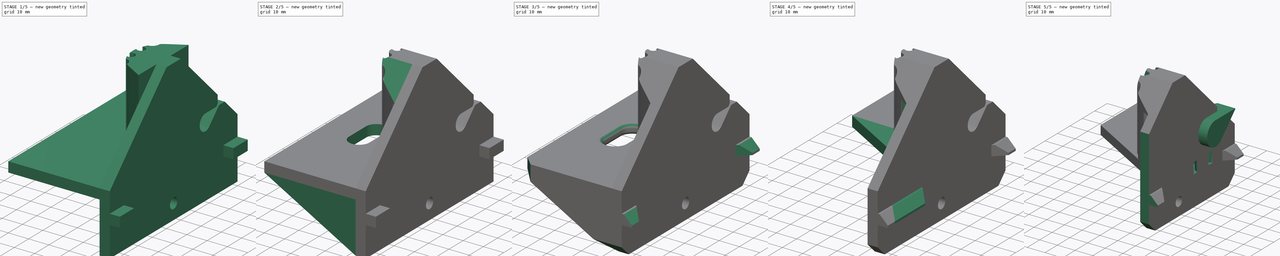
[diagram: build sequence overview — one tinted view per stage of 5, left to right]
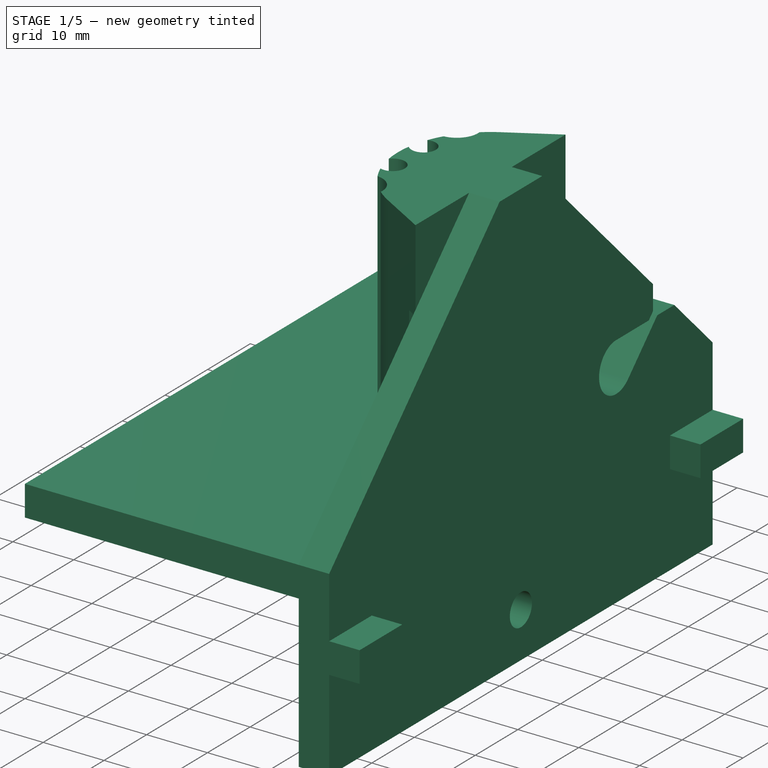
[diagram: stage 1 of 5 — iso view after this stage's code; geometry added in this stage tinted green]
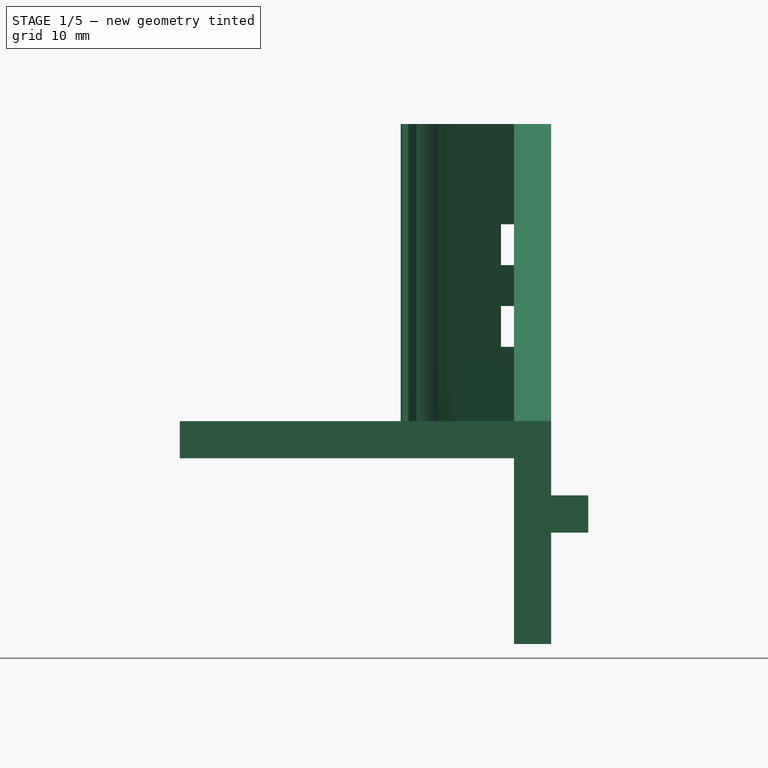
[diagram: stage 1 of 5 — front view after this stage's code; geometry added in this stage tinted green]
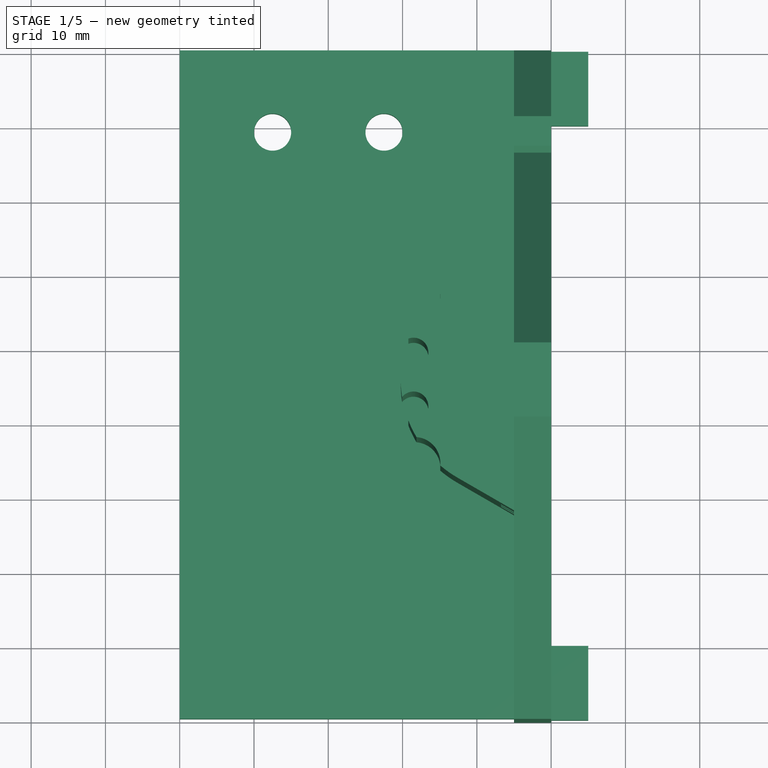
[diagram: stage 1 of 5 — top view after this stage's code; geometry added in this stage tinted green]
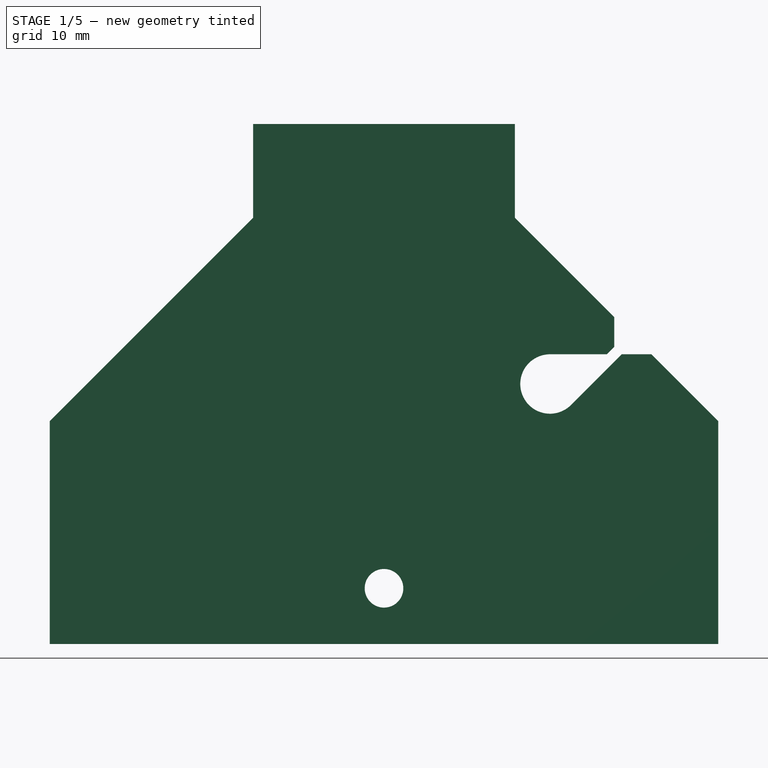
[diagram: stage 1 of 5 — right view after this stage's code; geometry added in this stage tinted green]
FCSTD DOCUMENT  (FreeCAD 0.20R29603 (Git))
Label: cable-splay
License: CERN Open Hardware Licence strongly-reciprocal
LicenseURL: https://cern-ohl.web.cern.ch/
objects: Sketcher::SketchObject×18, PartDesign::Pocket×14, PartDesign::Pad×8, PartDesign::Fillet×5, PartDesign::Chamfer×5, PartDesign::Plane×4, PartDesign::Body×2, PartDesign::Line×1, PartDesign::Groove×1, PartDesign::SubShapeBinder×1, PartDesign::SubtractivePipe×1, Part::Compound×1
note: 95 computed .brp shape members not serialized (recipe doc carries the construction recipe); baked Part::Feature solids carry a one-line shape summary decoded from their .brp

FEATURE [Sketcher::SketchObject] Sketch
  FullyConstrained = true
  MapMode = 5
  Placement = pos=(0,0,0) rot=(1,0,0;1.5708rad)
  Support = -> [XZ_Plane]
  sketch-geometry (12):
    g0: LineSegment StartX=0 StartY=0 StartZ=0 EndX=0 EndY=-15 EndZ=0
    g1: LineSegment StartX=0 StartY=-15 StartZ=0 EndX=-5 EndY=-15 EndZ=0
    g2: LineSegment StartX=-50 StartY=10 StartZ=0 EndX=-50 EndY=15 EndZ=0
    g3: LineSegment StartX=-50 StartY=15 StartZ=0 EndX=-5 EndY=15 EndZ=0
    g4: LineSegment StartX=-5 StartY=15 StartZ=0 EndX=-5 EndY=55 EndZ=0
    g5: LineSegment StartX=-5 StartY=55 StartZ=0 EndX=0 EndY=55 EndZ=0
    g6: LineSegment StartX=0 StartY=55 StartZ=0 EndX=0 EndY=5 EndZ=0
    g7: LineSegment StartX=0 StartY=5 StartZ=0 EndX=5 EndY=5 EndZ=0
    g8: LineSegment StartX=5 StartY=5 StartZ=0 EndX=5 EndY=0 EndZ=0
    g9: LineSegment StartX=5 StartY=0 StartZ=0 EndX=0 EndY=0 EndZ=0
    g10: LineSegment StartX=-50 StartY=10 StartZ=0 EndX=-5 EndY=10 EndZ=0
    g11: LineSegment StartX=-5 StartY=10 StartZ=0 EndX=-5 EndY=-15 EndZ=0
  constraints (35):
    c: Coincident(g-1,g0)
    c: PointOnObject(g0,g-2)
    c: Coincident(g0,g1)
    c: Horizontal(g1)
    c: Vertical(g2)
    c: Coincident(g2,g3)
    c: Horizontal(g3)
    c: Coincident(g3,g4)
    c: Vertical(g4)
    c: Coincident(g4,g5)
    c: Horizontal(g5)
    c: Coincident(g5,g6)
    c: Vertical(g6)
    c: Coincident(g6,g7)
    c: Horizontal(g7)
    c: Coincident(g7,g8)
    c: PointOnObject(g8,g-1)
    c: Vertical(g8)
    c: Coincident(g8,g9)
    c: Coincident(g9,g0)
    c: DistanceY(g0,g0) = 15
    c: DistanceY(g2,g2) = 5
    c: DistanceX(g9,g9) = 5
    c: DistanceX(g3,g3) = 45
    c: DistanceX(g5,g5) = 5
    c: DistanceY(g6,g6) = 50
    c: DistanceX(g1,g1) = 5
    c: Coincident(g10,g11)
    c: Coincident(g11,g1)
    c: Vertical(g11)
    c: Coincident(g10,g2)
    c: Horizontal(g10)
    c: DistanceY(g0,g10) = 10
    c: PointOnObject(g6,g-2)
    c: DistanceY(g8,g8) = 5
FEATURE [PartDesign::Pad] Pad
  Direction = (0,-1,-2e-16)
  Length = 90
  Length2 = 10
  Placement = pos=(0,0,0) rot=(1,0,0;1.5708rad)
  Profile = -> Sketch
  ReferenceAxis = -> Sketch [N_Axis]
  Type = 0
FEATURE [Sketcher::SketchObject] Sketch001
  FullyConstrained = true
  MapMode = 5
  Placement = pos=(0,0,0) rot=(0.57735,0.57735,0.57735;2.0944rad)
  Support = -> [YZ_Plane]
  sketch-geometry (7):
    g0: Circle CenterX=-45 CenterY=-7.5 CenterZ=0 NormalX=0 NormalY=0 NormalZ=1 AngleXU=0 Radius=2.6
    g1: LineSegment StartX=-90 StartY=15 StartZ=0 EndX=-50 EndY=55 EndZ=0
    g2: LineSegment StartX=-50 StartY=55 StartZ=0 EndX=-90 EndY=55 EndZ=0
    g3: LineSegment StartX=-90 StartY=55 StartZ=0 EndX=-90 EndY=15 EndZ=0
    g4: LineSegment StartX=0 StartY=15 StartZ=0 EndX=-40 EndY=55 EndZ=0
    g5: LineSegment StartX=-40 StartY=55 StartZ=0 EndX=0 EndY=55 EndZ=0
    g6: LineSegment StartX=0 StartY=55 StartZ=0 EndX=0 EndY=15 EndZ=0
  constraints (21):
    c: Diameter(g0) = 5.2
    c: DistanceX(g0,g-1) = 45
    c: DistanceY(g0,g-1) = 7.5
    c: Coincident(g1,g2)
    c: Horizontal(g2)
    c: Coincident(g2,g3)
    c: Coincident(g3,g1)
    c: Vertical(g3)
    c: PointOnObject(g4,g-2)
    c: Coincident(g4,g5)
    c: PointOnObject(g5,g-2)
    c: Horizontal(g5)
    c: Coincident(g5,g6)
    c: Coincident(g6,g4)
    c: DistanceY(g6,g6) = 40
    c: DistanceY(g3,g3) = 40
    c: PointOnObject(g1,g5)
    c: DistanceX(g2,g2) = 40
    c: DistanceX(g5,g5) = 40
    c: DistanceY(g-1,g5) = 55
    c: DistanceX(g2,g-1) = 90
FEATURE [PartDesign::Pocket] Pocket
  BaseFeature = -> Pad
  Direction = (-1,2e-16,-3e-16)
  Length = 5
  Length2 = 5
  Placement = pos=(0,0,0) rot=(1,0,0;1.5708rad)
  Profile = -> Sketch001
  ReferenceAxis = -> Sketch001 [N_Axis]
  Type = 0
FEATURE [Sketcher::SketchObject] Sketch002
  FullyConstrained = true
  MapMode = 5
  Support = -> [XY_Plane]
  sketch-geometry (4):
    g0: LineSegment StartX=0 StartY=-10 StartZ=0 EndX=5 EndY=-10 EndZ=0
    g1: LineSegment StartX=5 StartY=-10 StartZ=0 EndX=5 EndY=-80 EndZ=0
    g2: LineSegment StartX=5 StartY=-80 StartZ=0 EndX=0 EndY=-80 EndZ=0
    g3: LineSegment StartX=0 StartY=-80 StartZ=0 EndX=0 EndY=-10 EndZ=0
  constraints (12):
    c: Coincident(g0,g1)
    c: Coincident(g1,g2)
    c: Coincident(g2,g3)
    c: Coincident(g3,g0)
    c: Horizontal(g0)
    c: Horizontal(g2)
    c: Vertical(g1)
    c: Vertical(g3)
    c: PointOnObject(g0,g-2)
    c: DistanceY(g0,g-1) = 10
    c: DistanceY(g3,g3) = 70
    c: DistanceX(g0,g0) = 5
FEATURE [PartDesign::Pocket] Pocket001
  BaseFeature = -> Pocket
  Direction = (0,0,-1)
  Length = 5
  Length2 = 5
  Placement = pos=(0,0,0) rot=(1,0,0;1.5708rad)
  Profile = -> Sketch002
  ReferenceAxis = -> Sketch002 [N_Axis]
  Reversed = true
  Type = 0
FEATURE [Sketcher::SketchObject] Sketch004
  FullyConstrained = false
  MapMode = 5
  Placement = pos=(0,0,0) rot=(0.57735,0.57735,0.57735;2.0944rad)
  Support = -> [YZ_Plane]
  sketch-geometry (9):
    g0: ArcOfCircle CenterX=-22.6569 CenterY=20 CenterZ=0 NormalX=0 NormalY=0 NormalZ=1 AngleXU=0 Radius=4 StartAngle=1.5708 EndAngle=5.49779
    g1: LineSegment StartX=-14 StartY=29 StartZ=0 EndX=-9 EndY=24 EndZ=0
    g2: LineSegment StartX=-4.65521 StartY=19.6552 StartZ=0 EndX=0 EndY=15 EndZ=0
    g3: LineSegment StartX=-14 StartY=25 StartZ=0 EndX=-14 EndY=29 EndZ=0
    g4: LineSegment StartX=-14 StartY=25 StartZ=0 EndX=-15 EndY=24 EndZ=0
    g5: LineSegment StartX=-15 StartY=24 StartZ=0 EndX=-22.6569 EndY=24 EndZ=0
    g6: LineSegment StartX=-13 StartY=24 StartZ=0 EndX=-9 EndY=24 EndZ=0
    g7: LineSegment StartX=-13 StartY=24 StartZ=0 EndX=-14 EndY=23 EndZ=0
    g8: LineSegment StartX=-19.8284 StartY=17.1716 StartZ=0 EndX=-14 EndY=23 EndZ=0
  constraints (26):
    c: Angle(g1,g-1) = 0.785398
    c: PointOnObject(g2,g-2)
    c: Parallel(g1,g2)
    c: DistanceY(g-1,g2) = 15
    c: PointOnObject(g1,g2)
    c: Coincident(g3,g1)
    c: Vertical(g3)
    c: Coincident(g3,g4)
    c: Tangent(g5,g0) = -1.5708
    c: Angle(g3,g4) = 2.35619
    c: DistanceY(g3,g3) = 4
    c: DistanceX(g4,g3) = 1
    c: Coincident(g6,g1)
    c: Horizontal(g6)
    c: DistanceX(g6,g6) = 4
    c: DistanceX(g1,g-1) = 14
    c: Coincident(g5,g4)
    c: Horizontal(g5)
    c: Coincident(g7,g6)
    c: DistanceX(g7,g6) = 1
    c: Angle(g7,g6) = 2.35619
    c: Coincident(g8,g7)
    c: Tangent(g8,g0) = -1.5708
    c: Parallel(g8,g7)
    c: Diameter(g0) = 8
    c: DistanceX(g3,g1) = 5
FEATURE [PartDesign::Pocket] Pocket002
  BaseFeature = -> Pocket001
  Direction = (-1,2e-16,-3e-16)
  Length = 5
  Length2 = 5
  Placement = pos=(0,0,0) rot=(1,0,0;1.5708rad)
  Profile = -> Sketch004
  ReferenceAxis = -> Sketch004 [N_Axis]
  Type = 0
FEATURE [PartDesign::Plane] DatumPlane
  Length = 91.7929
  MapMode = 5
  Placement = pos=(0,0,15) rot=(0,0,1;3.14159rad)
  ResizeMode = 0
  Support = -> [Pocket002]
  Width = 110.793
FEATURE [Sketcher::SketchObject] Sketch005  label="splay-column"
  FullyConstrained = true
  MapMode = 5
  Placement = pos=(0,0,15) rot=(0,0,1;3.14159rad)
  Support = -> [DatumPlane]
  sketch-geometry (18):
    g0: LineSegment StartX=5 StartY=62.6092 StartZ=0 EndX=5 EndY=27.3908 EndZ=0
    g1: GeomPoint X=5 Y=45 Z=0
    g2: ArcOfCircle CenterX=5 CenterY=45 CenterZ=0 NormalX=0 NormalY=0 NormalZ=1 AngleXU=0 Radius=15.25 StartAngle=5.23599 EndAngle=5.42076
    g3: ArcOfCircle CenterX=5 CenterY=45 CenterZ=0 NormalX=0 NormalY=0 NormalZ=1 AngleXU=0 Radius=15.25 StartAngle=0.862426 EndAngle=1.0472
    g4: ArcOfCircle CenterX=5 CenterY=45 CenterZ=0 NormalX=0 NormalY=0 NormalZ=1 AngleXU=0 Radius=15.25 StartAngle=0.3687 EndAngle=0.533837
    g5: ArcOfCircle CenterX=5 CenterY=45 CenterZ=0 NormalX=0 NormalY=0 NormalZ=1 AngleXU=0 Radius=15.25 StartAngle=6.12829 EndAngle=6.43808
    g6: ArcOfCircle CenterX=5 CenterY=45 CenterZ=0 NormalX=0 NormalY=0 NormalZ=1 AngleXU=0 Radius=15.25 StartAngle=5.74935 EndAngle=5.91449
    g7: ArcOfCircle CenterX=18.523 CenterY=48.6235 CenterZ=0 NormalX=0 NormalY=0 NormalZ=1 AngleXU=0 Radius=2 StartAngle=1.21206 EndAngle=5.59473
    g8: ArcOfCircle CenterX=18.523 CenterY=41.3765 CenterZ=0 NormalX=0 NormalY=0 NormalZ=1 AngleXU=0 Radius=2 StartAngle=0.688459 EndAngle=5.07113
    g9: ArcOfCircle CenterX=18.4058 CenterY=33.7512 CenterZ=0 NormalX=0 NormalY=0 NormalZ=1 AngleXU=0 Radius=3.5 StartAngle=1.65021 EndAngle=3.23671
    g10: ArcOfCircle CenterX=18.4058 CenterY=56.2488 CenterZ=0 NormalX=0 NormalY=0 NormalZ=1 AngleXU=0 Radius=3.5 StartAngle=3.04647 EndAngle=4.63298
    g11: LineSegment StartX=5 StartY=45 StartZ=0 EndX=18.523 EndY=48.6235 EndZ=0
    g12: LineSegment StartX=5 StartY=45 StartZ=0 EndX=18.523 EndY=41.3765 EndZ=0
    g13: LineSegment StartX=5 StartY=45 StartZ=0 EndX=20.25 EndY=45 EndZ=0
    g14: LineSegment StartX=5 StartY=45 StartZ=0 EndX=18.4058 EndY=56.2488 EndZ=0
    g15: LineSegment StartX=5 StartY=45 StartZ=0 EndX=18.4058 EndY=33.7512 EndZ=0
    g16: LineSegment StartX=12.625 StartY=58.2069 StartZ=0 EndX=5 EndY=62.6092 EndZ=0
    g17: LineSegment StartX=5 StartY=27.3908 StartZ=0 EndX=12.625 EndY=31.7931 EndZ=0
  constraints (50):
    c: Vertical(g0)
    c: Symmetric(g0,g0,g1)
    c: DistanceY(g-1,g1) = 45
    c: DistanceX(g-1,g1) = 5
    c: Coincident(g2,g1)
    c: Coincident(g3,g2)
    c: Coincident(g4,g2)
    c: Coincident(g5,g2)
    c: Coincident(g6,g2)
    c: Diameter(g3) = 30.5
    c: Diameter(g4) = 30.5
    c: Diameter(g5) = 30.5
    c: Diameter(g6) = 30.5
    c: Coincident(g7,g4)
    c: Coincident(g7,g5)
    c: Coincident(g8,g5)
    c: Coincident(g8,g6)
    c: Coincident(g9,g2)
    c: Coincident(g9,g6)
    c: Coincident(g10,g3)
    c: Coincident(g10,g4)
    c: Diameter(g8) = 4
    c: Diameter(g7) = 4
    c: Coincident(g11,g2)
    c: Coincident(g11,g7)
    c: Coincident(g12,g2)
    c: Coincident(g12,g8)
    c: Coincident(g13,g2)
    c: PointOnObject(g13,g5)
    c: Horizontal(g13)
    c: Angle(g13,g11) = 0.261799
    c: Angle(g12,g13) = 0.261799
    c: Distance(g11) = 14
    c: Distance(g12) = 14
    c: Coincident(g14,g2)
    c: Coincident(g14,g10)
    c: Coincident(g15,g2)
    c: Coincident(g15,g9)
    c: Angle(g13,g14) = 0.698132
    c: Angle(g15,g13) = 0.698132
    c: Diameter(g9) = 7
    c: Diameter(g10) = 7
    c: Distance(g15) = 17.5
    c: Distance(g14) = 17.5
    c: Tangent(g16,g3) = -1.5708
    c: Coincident(g16,g0)
    c: Coincident(g17,g0)
    c: Tangent(g17,g2) = -1.5708
    c: Diameter(g2) = 30.5
    c: Angle(g0,g16) = 1.0472
FEATURE [PartDesign::Pad] Pad001
  BaseFeature = -> Pocket002
  Direction = (0,0,1)
  Length = 40
  Length2 = 10
  Placement = pos=(0,0,0) rot=(1,0,0;1.5708rad)
  Profile = -> Sketch005
  ReferenceAxis = -> Sketch005 [N_Axis]
  Type = 0
FEATURE [PartDesign::Plane] DatumPlane001
  AttachmentOffset = pos=(0,0,10) rot=(0,0,1;0rad)
  Length = 91.7929
  MapMode = 5
  Placement = pos=(0,0,25) rot=(0,0,1;3.14159rad)
  ResizeMode = 0
  Support = -> [DatumPlane]
  Width = 110.793
FEATURE [Sketcher::SketchObject] Sketch007  label="zip-tiue-holes"
  FullyConstrained = true
  MapMode = 5
  Placement = pos=(0,0,0) rot=(1,0,0;1.5708rad)
  Support = -> [XZ_Plane]
  sketch-geometry (8):
    g0: LineSegment StartX=-5 StartY=41.5 StartZ=0 EndX=-6.75 EndY=41.5 EndZ=0
    g1: LineSegment StartX=-6.75 StartY=41.5 StartZ=0 EndX=-6.75 EndY=36 EndZ=0
    g2: LineSegment StartX=-6.75 StartY=36 StartZ=0 EndX=-5 EndY=36 EndZ=0
    g3: LineSegment StartX=-5 StartY=36 StartZ=0 EndX=-5 EndY=41.5 EndZ=0
    g4: LineSegment StartX=-5 StartY=30.5 StartZ=0 EndX=-6.75 EndY=30.5 EndZ=0
    g5: LineSegment StartX=-6.75 StartY=30.5 StartZ=0 EndX=-6.75 EndY=25 EndZ=0
    g6: LineSegment StartX=-6.75 StartY=25 StartZ=0 EndX=-5 EndY=25 EndZ=0
    g7: LineSegment StartX=-5 StartY=25 StartZ=0 EndX=-5 EndY=30.5 EndZ=0
  constraints (24):
    c: Coincident(g0,g1)
    c: Coincident(g1,g2)
    c: Coincident(g2,g3)
    c: Coincident(g3,g0)
    c: Horizontal(g0)
    c: Horizontal(g2)
    c: Vertical(g1)
    c: Vertical(g3)
    c: Coincident(g4,g5)
    c: Coincident(g5,g6)
    c: Coincident(g6,g7)
    c: Coincident(g7,g4)
    c: Horizontal(g4)
    c: Horizontal(g6)
    c: Vertical(g5)
    c: Vertical(g7)
    c: DistanceY(g7,g7) = 5.5
    c: DistanceX(g4,g4) = 1.75
    c: DistanceY(g3,g3) = 5.5
    c: DistanceX(g0,g0) = 1.75
    c: DistanceX(g6,g-1) = 5
    c: DistanceX(g2,g-1) = 5
    c: DistanceY(g-1,g6) = 25
    c: DistanceY(g-1,g2) = 36
FEATURE [PartDesign::Pocket] Pocket004
  BaseFeature = -> Pad001
  Direction = (0,1,2e-16)
  Length = 5
  Length2 = 5
  Placement = pos=(0,0,0) rot=(1,0,0;1.5708rad)
  Profile = -> Sketch007
  ReferenceAxis = -> Sketch007 [N_Axis]
  Reversed = true
  Type = 1
FEATURE [Sketcher::SketchObject] Sketch008
  FullyConstrained = true
  MapMode = 5
  Placement = pos=(0,0,15) rot=(0,0,1;3.14159rad)
  Support = -> [DatumPlane]
  sketch-geometry (4):
    g0: Circle CenterX=37.5 CenterY=11 CenterZ=0 NormalX=0 NormalY=0 NormalZ=1 AngleXU=0 Radius=2.5
    g1: Circle CenterX=22.5 CenterY=11 CenterZ=0 NormalX=0 NormalY=0 NormalZ=1 AngleXU=0 Radius=2.5
    g2: LineSegment StartX=22.5 StartY=11 StartZ=0 EndX=37.5 EndY=11 EndZ=0
    g3: GeomPoint X=30 Y=11 Z=0
  constraints (9):
    c: Coincident(g2,g1)
    c: Coincident(g2,g0)
    c: Horizontal(g2)
    c: DistanceX(g2,g2) = 15
    c: Diameter(g0) = 5
    c: Diameter(g1) = 5
    c: DistanceY(g-1,g1) = 11
    c: Symmetric(g2,g2,g3)
    c: DistanceX(g-1,g3) = 30
FEATURE [PartDesign::Pocket] Pocket005
  BaseFeature = -> Pocket004
  Direction = (0,0,-1)
  Length = 5
  Length2 = 5
  Placement = pos=(0,0,0) rot=(1,0,0;1.5708rad)
  Profile = -> Sketch008
  ReferenceAxis = -> Sketch008 [N_Axis]
  Type = 0
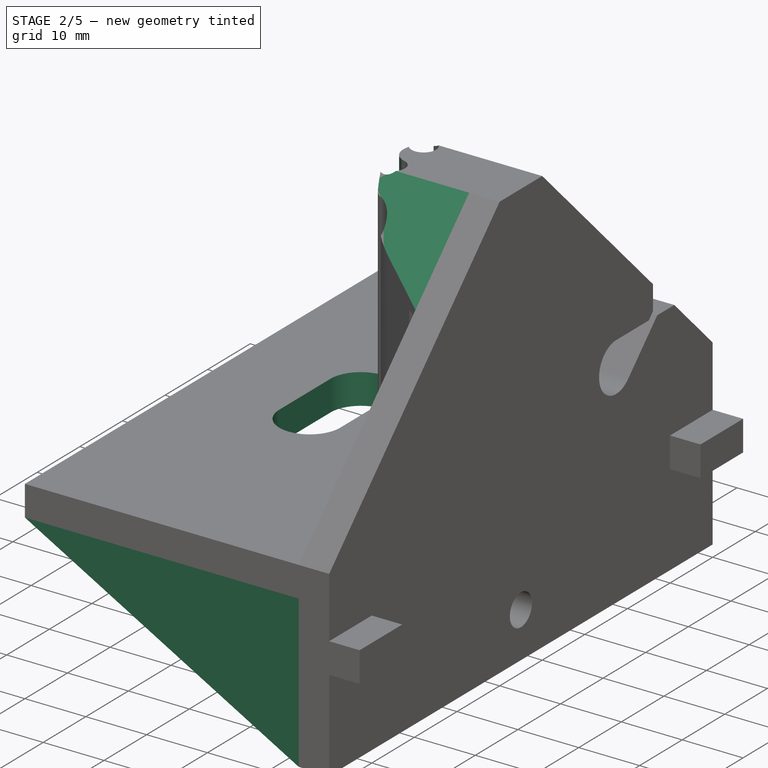
[diagram: stage 2 of 5 — iso view after this stage's code; geometry added in this stage tinted green]
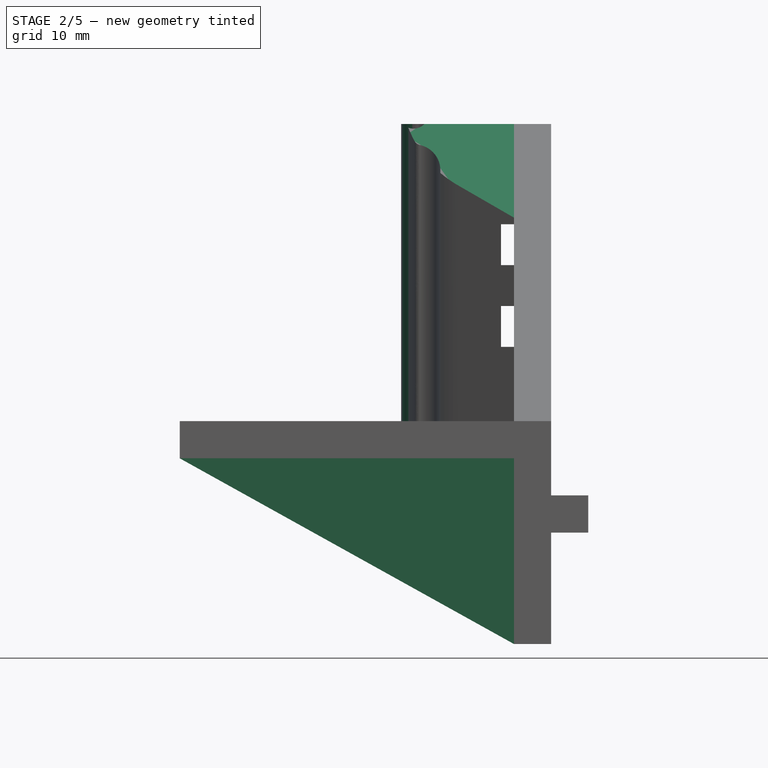
[diagram: stage 2 of 5 — front view after this stage's code; geometry added in this stage tinted green]
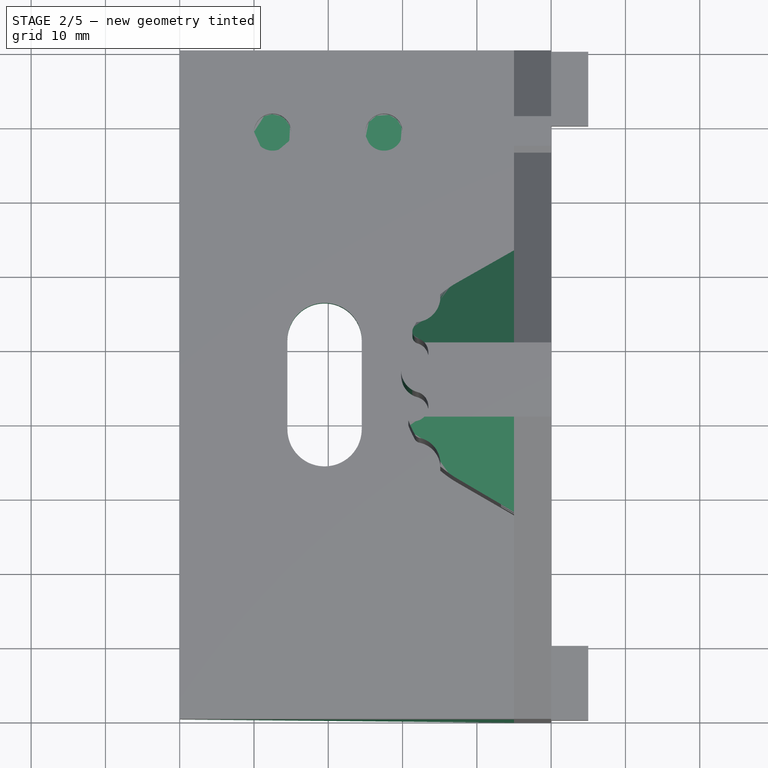
[diagram: stage 2 of 5 — top view after this stage's code; geometry added in this stage tinted green]
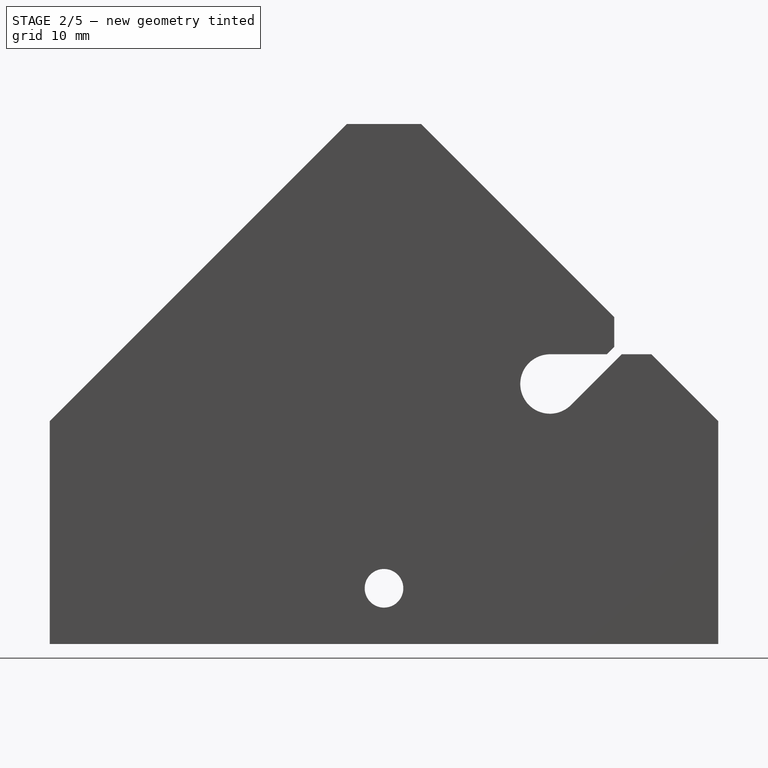
[diagram: stage 2 of 5 — right view after this stage's code; geometry added in this stage tinted green]
FEATURE [Sketcher::SketchObject] Sketch009
  FullyConstrained = true
  MapMode = 5
  Placement = pos=(0,0,0) rot=(0.57735,0.57735,0.57735;2.0944rad)
  Support = -> [YZ_Plane]
  sketch-geometry (5):
    g0: LineSegment StartX=0 StartY=15 StartZ=0 EndX=-45 EndY=60 EndZ=0
    g1: LineSegment StartX=-45 StartY=60 StartZ=0 EndX=-105 EndY=-7.1e-15 EndZ=0
    g2: LineSegment StartX=-105 StartY=-4.1e-15 StartZ=0 EndX=-105 EndY=80 EndZ=0
    g3: LineSegment StartX=-105 StartY=80 StartZ=0 EndX=0 EndY=80 EndZ=0
    g4: LineSegment StartX=0 StartY=80 StartZ=0 EndX=0 EndY=15 EndZ=0
  constraints (15):
    c: PointOnObject(g0,g-2)
    c: Coincident(g0,g1)
    c: PointOnObject(g1,g-1)
    c: Coincident(g1,g2)
    c: Vertical(g2)
    c: Coincident(g2,g3)
    c: PointOnObject(g3,g-2)
    c: Horizontal(g3)
    c: Coincident(g3,g4)
    c: Coincident(g4,g0)
    c: DistanceY(g-1,g0) = 15
    c: Angle(g0,g-2) = 2.35619
    c: Angle(g-1,g1) = 0.785398
    c: DistanceX(g0,g-1) = 45
    c: DistanceY(g2,g2) = 80
FEATURE [PartDesign::Pocket] Pocket006
  BaseFeature = -> Pocket005
  Direction = (-1,2e-16,-3e-16)
  Length = 20
  Length2 = 5
  Placement = pos=(0,0,0) rot=(1,0,0;1.5708rad)
  Profile = -> Sketch009
  ReferenceAxis = -> Sketch009 [N_Axis]
  Type = 0
FEATURE [PartDesign::Fillet] Fillet
  Base = -> Pocket006 [Edge89,Edge87]
  BaseFeature = -> Pocket006
  Placement = pos=(0,0,0) rot=(1,0,0;1.5708rad)
  Radius = 1
  SupportTransform = false
  UseAllEdges = false
FEATURE [PartDesign::Fillet] Fillet001
  Base = -> Fillet [Edge34]
  BaseFeature = -> Fillet
  Placement = pos=(0,0,0) rot=(1,0,0;1.5708rad)
  Radius = 3
  SupportTransform = false
  UseAllEdges = false
FEATURE [PartDesign::Fillet] Fillet002
  Base = -> Fillet001 [Edge35]
  BaseFeature = -> Fillet001
  Placement = pos=(0,0,0) rot=(1,0,0;1.5708rad)
  Radius = 3
  SupportTransform = false
  UseAllEdges = false
FEATURE [PartDesign::Plane] DatumPlane002
  Length = 91.7929
  MapMode = 5
  Placement = pos=(0,0,15) rot=(0,0,1;3.14159rad)
  ResizeMode = 0
  Support = -> [Fillet002]
  Width = 110.793
FEATURE [Sketcher::SketchObject] Sketch010
  FullyConstrained = true
  MapMode = 5
  Placement = pos=(0,0,15) rot=(0,0,1;3.14159rad)
  Support = -> [DatumPlane002]
  sketch-geometry (4):
    g0: ArcOfCircle CenterX=30.5 CenterY=39 CenterZ=0 NormalX=0 NormalY=0 NormalZ=1 AngleXU=0 Radius=5 StartAngle=3.14159 EndAngle=6.28319
    g1: ArcOfCircle CenterX=30.5 CenterY=51 CenterZ=0 NormalX=0 NormalY=0 NormalZ=1 AngleXU=0 Radius=5 StartAngle=-9e-16 EndAngle=3.14159
    g2: LineSegment StartX=35.5 StartY=39 StartZ=0 EndX=35.5 EndY=51 EndZ=0
    g3: LineSegment StartX=25.5 StartY=51 StartZ=0 EndX=25.5 EndY=39 EndZ=0
  constraints (10):
    c: Tangent(g0,g2) = -1.5708
    c: Tangent(g2,g1) = -1.5708
    c: Tangent(g1,g3) = -1.5708
    c: Tangent(g3,g0) = -1.5708
    c: Equal(g0,g1)
    c: Diameter(g1) = 10
    c: DistanceX(g-1,g0) = 30.5
    c: DistanceY(g-1,g0) = 39
    c: DistanceY(g0,g1) = 12
    c: Vertical(g3)
FEATURE [PartDesign::Pocket] Pocket007
  BaseFeature = -> Fillet002
  Direction = (0,-4e-16,-1)
  Length = 5
  Length2 = 5
  Placement = pos=(0,0,0) rot=(1,0,0;1.5708rad)
  Profile = -> Sketch010
  ReferenceAxis = -> Sketch010 [N_Axis]
  Type = 0
FEATURE [Sketcher::SketchObject] Sketch011
  FullyConstrained = true
  MapMode = 5
  Placement = pos=(0,0,0) rot=(1,0,0;1.5708rad)
  Support = -> [XZ_Plane]
  sketch-geometry (3):
    g0: LineSegment StartX=-5 StartY=-15 StartZ=0 EndX=-50 EndY=10 EndZ=0
    g1: LineSegment StartX=-50 StartY=10 StartZ=0 EndX=-5 EndY=10 EndZ=0
    g2: LineSegment StartX=-5 StartY=10 StartZ=0 EndX=-5 EndY=-15 EndZ=0
  constraints (9):
    c: Coincident(g0,g1)
    c: Horizontal(g1)
    c: Coincident(g1,g2)
    c: Coincident(g2,g0)
    c: Vertical(g2)
    c: DistanceX(g1,g-1) = 5
    c: DistanceY(g-1,g1) = 10
    c: DistanceY(g2,g2) = 25
    c: DistanceX(g1,g1) = 45
FEATURE [PartDesign::Pad] Pad002
  BaseFeature = -> Pocket007
  Direction = (0,-1,-2e-16)
  Length = 15
  Length2 = 10
  Placement = pos=(0,0,0) rot=(1,0,0;1.5708rad)
  Profile = -> Sketch011
  ReferenceAxis = -> Sketch011 [N_Axis]
  Type = 0
FEATURE [PartDesign::Plane] DatumPlane003
  Length = 90.4919
  MapMode = 5
  Placement = pos=(0,-90,-1.98e-14) rot=(1,0,0;1.5708rad)
  ResizeMode = 0
  Support = -> [Pad002]
  Width = 95.4919
FEATURE [Sketcher::SketchObject] Sketch012
  FullyConstrained = true
  MapMode = 5
  Placement = pos=(0,-90,-1.98e-14) rot=(1,0,0;1.5708rad)
  Support = -> [DatumPlane003]
  sketch-geometry (3):
    g0: LineSegment StartX=-5 StartY=-15 StartZ=0 EndX=-5 EndY=10 EndZ=0
    g1: LineSegment StartX=-5 StartY=10 StartZ=0 EndX=-50 EndY=10 EndZ=0
    g2: LineSegment StartX=-50 StartY=10 StartZ=0 EndX=-5 EndY=-15 EndZ=0
  constraints (9):
    c: Vertical(g0)
    c: Coincident(g0,g1)
    c: Horizontal(g1)
    c: Coincident(g1,g2)
    c: Coincident(g2,g0)
    c: DistanceY(g0,g0) = 25
    c: DistanceX(g1,g1) = 45
    c: DistanceX(g0,g-1) = 5
    c: DistanceY(g-1,g0) = 10
FEATURE [PartDesign::Pad] Pad003
  BaseFeature = -> Pad002
  Direction = (0,-1,4e-16)
  Length = 15
  Length2 = 10
  Placement = pos=(0,0,0) rot=(1,0,0;1.5708rad)
  Profile = -> Sketch012
  ReferenceAxis = -> Sketch012 [N_Axis]
  Reversed = true
  Type = 0
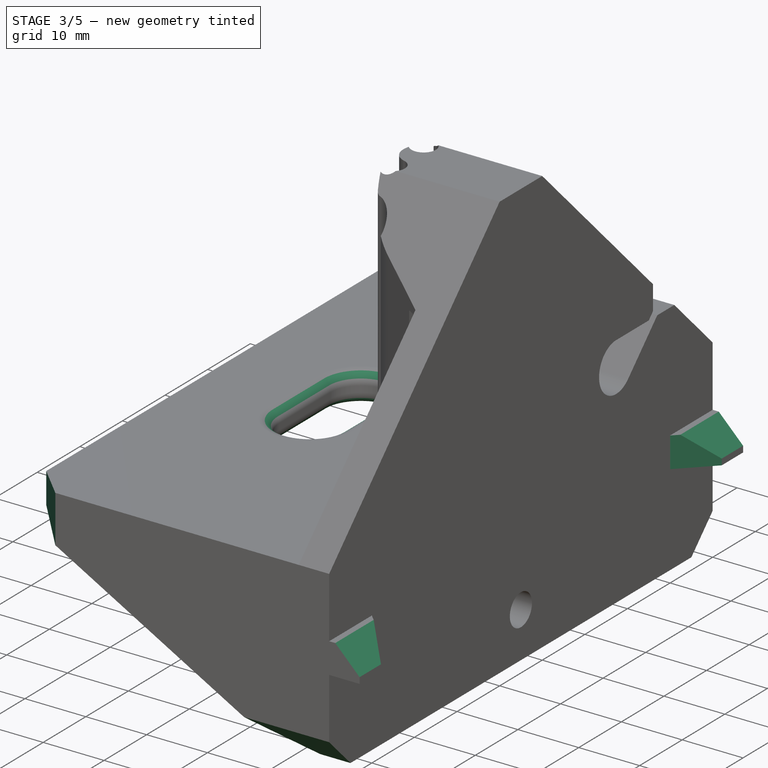
[diagram: stage 3 of 5 — iso view after this stage's code; geometry added in this stage tinted green]
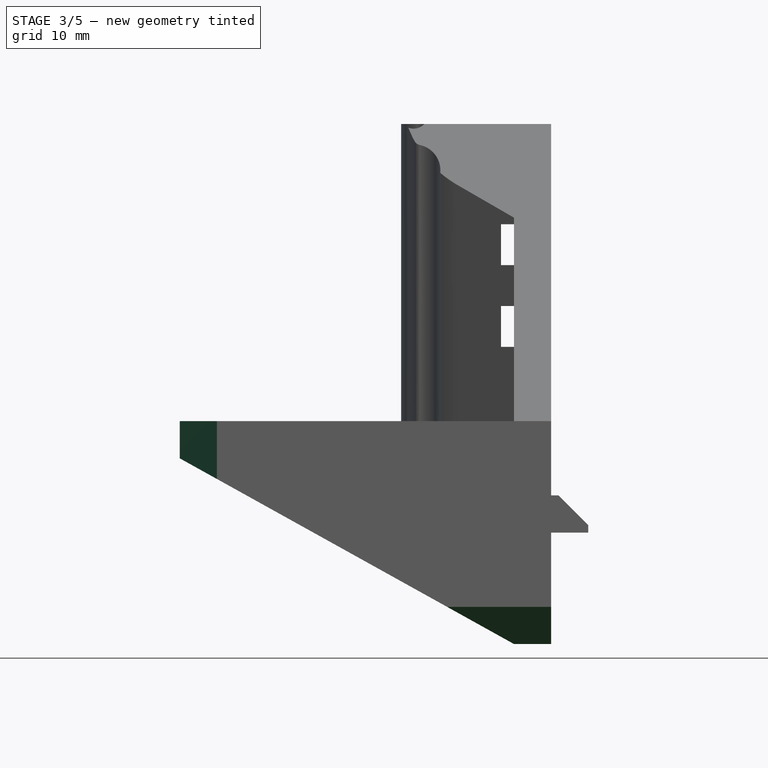
[diagram: stage 3 of 5 — front view after this stage's code; geometry added in this stage tinted green]
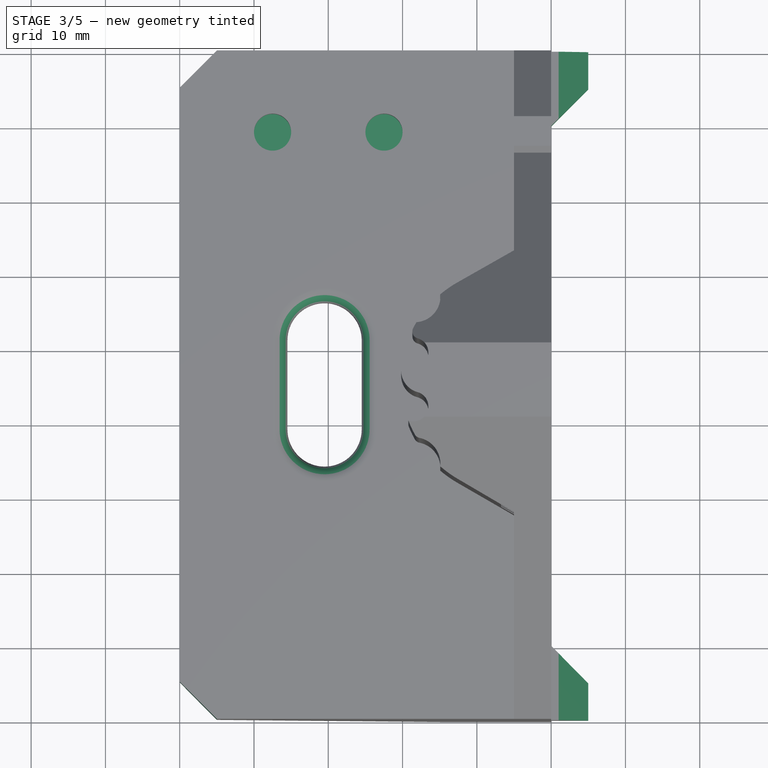
[diagram: stage 3 of 5 — top view after this stage's code; geometry added in this stage tinted green]
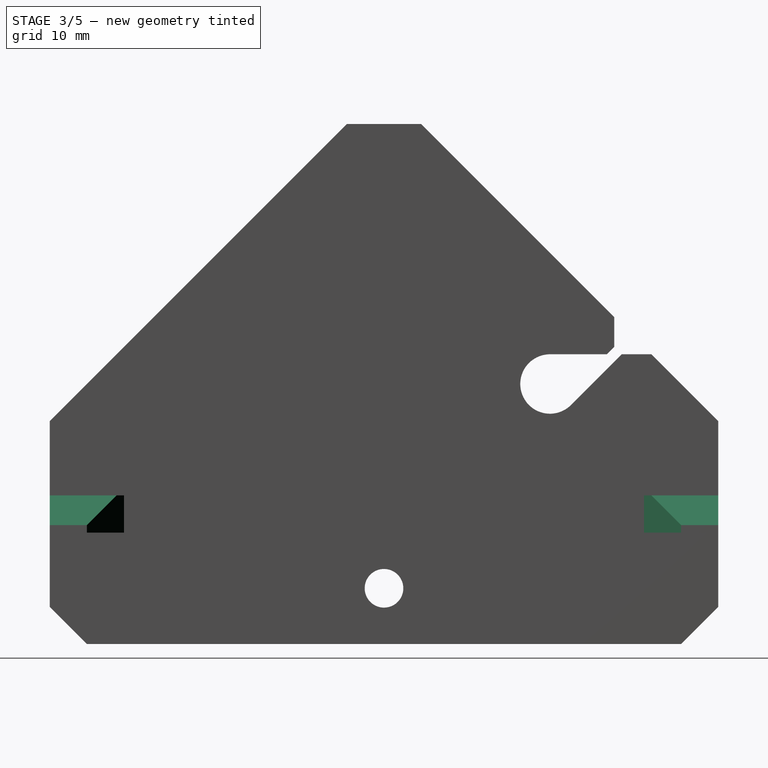
[diagram: stage 3 of 5 — right view after this stage's code; geometry added in this stage tinted green]
FEATURE [PartDesign::Chamfer] Chamfer
  Angle = 45
  Base = -> Pad003 [Edge201]
  BaseFeature = -> Pad003
  ChamferType = 1
  FlipDirection = false
  Placement = pos=(0,0,0) rot=(1,0,0;1.5708rad)
  Size = 20
  Size2 = 44.99
  SupportTransform = false
  UseAllEdges = false
FEATURE [PartDesign::Chamfer] Chamfer001
  Angle = 45
  Base = -> Chamfer [Edge9]
  BaseFeature = -> Chamfer
  ChamferType = 1
  FlipDirection = false
  Placement = pos=(0,0,0) rot=(1,0,0;1.5708rad)
  Size = 20
  Size2 = 44.99
  SupportTransform = false
  UseAllEdges = false
FEATURE [PartDesign::Chamfer] Chamfer002
  Angle = 45
  Base = -> Chamfer001 [Edge31,Edge42,Edge6,Edge7]
  BaseFeature = -> Chamfer001
  ChamferType = 0
  FlipDirection = false
  Placement = pos=(0,0,0) rot=(1,0,0;1.5708rad)
  Refine = true
  Size = 5
  Size2 = 1
  SupportTransform = false
  UseAllEdges = false
FEATURE [PartDesign::Chamfer] Chamfer003
  Angle = 45
  Base = -> Chamfer002 [Edge51,Edge6]
  BaseFeature = -> Chamfer002
  ChamferType = 0
  FlipDirection = false
  Placement = pos=(0,0,0) rot=(1,0,0;1.5708rad)
  Refine = true
  Size = 4.99
  Size2 = 1
  SupportTransform = false
  UseAllEdges = false
FEATURE [PartDesign::Chamfer] Chamfer004
  Angle = 45
  Base = -> Chamfer003 [Edge35,Edge87]
  BaseFeature = -> Chamfer003
  ChamferType = 0
  FlipDirection = false
  Placement = pos=(0,0,0) rot=(1,0,0;1.5708rad)
  Refine = true
  Size = 4
  Size2 = 1
  SupportTransform = false
  UseAllEdges = false
FEATURE [PartDesign::Fillet] Fillet003
  Base = -> Chamfer004 [Edge70,Edge181]
  BaseFeature = -> Chamfer004
  Placement = pos=(0,0,0) rot=(1,0,0;1.5708rad)
  Radius = 2
  Refine = true
  SupportTransform = false
  UseAllEdges = false
FEATURE [Sketcher::SketchObject] Sketch013
  ExternalGeometry = -> [Fillet003]
  FullyConstrained = true
  MapMode = 5
  Placement = pos=(0,0,0) rot=(1,0,0;1.5708rad)
  Support = -> [XZ_Plane]
  sketch-geometry (11):
    g0: LineSegment StartX=-18.45 StartY=11 StartZ=0 EndX=-26.55 EndY=11 EndZ=0
    g1: LineSegment StartX=-26.55 StartY=11 StartZ=0 EndX=-26.55 EndY=7.05 EndZ=0
    g2: LineSegment StartX=-26.55 StartY=7.05 StartZ=0 EndX=-18.45 EndY=7.05 EndZ=0
    g3: LineSegment StartX=-18.45 StartY=7.05 StartZ=0 EndX=-18.45 EndY=11 EndZ=0
    g4: LineSegment StartX=-33.4 StartY=11 StartZ=0 EndX=-41.6 EndY=11 EndZ=0
    g5: LineSegment StartX=-41.6 StartY=11 StartZ=0 EndX=-41.6 EndY=7.05 EndZ=0
    g6: LineSegment StartX=-41.6 StartY=7.05 StartZ=0 EndX=-33.4 EndY=7.05 EndZ=0
    g7: LineSegment StartX=-33.4 StartY=7.05 StartZ=0 EndX=-33.4 EndY=11 EndZ=0
    g8: LineSegment StartX=0 StartY=11 StartZ=0 EndX=-41.6 EndY=11 EndZ=0
    g9: LineSegment StartX=-22.5 StartY=11 StartZ=0 EndX=-22.5 EndY=7.05 EndZ=0
    g10: LineSegment StartX=-37.5 StartY=7.05 StartZ=0 EndX=-37.5 EndY=11 EndZ=0
  constraints (33):
    c: Coincident(g0,g1)
    c: Coincident(g1,g2)
    c: Coincident(g2,g3)
    c: Coincident(g3,g0)
    c: Horizontal(g0)
    c: Horizontal(g2)
    c: Vertical(g1)
    c: Vertical(g3)
    c: Coincident(g4,g5)
    c: Coincident(g5,g6)
    c: Coincident(g6,g7)
    c: Coincident(g7,g4)
    c: Horizontal(g4)
    c: Horizontal(g6)
    c: Vertical(g5)
    c: Vertical(g7)
    c: PointOnObject(g8,g-2)
    c: Coincident(g8,g4)
    c: Horizontal(g8)
    c: DistanceY(g-1,g8) = 11
    c: PointOnObject(g0,g8)
    c: DistanceX(g0,g0) = 8.1
    c: DistanceY(g3,g3) = 3.95
    c: DistanceY(g7,g7) = 3.95
    c: DistanceX(g4,g4) = 8.2
    c: PointOnObject(g9,g0)
    c: Vertical(g9)
    c: Symmetric(g2,g2,g9)
    c: PointOnObject(g10,g4)
    c: Vertical(g10)
    c: Symmetric(g6,g6,g10)
    c: DistanceX(g9,g-1) = 22.5
    c: DistanceX(g10,g9) = 15
FEATURE [PartDesign::Pocket] Pocket008
  BaseFeature = -> Fillet003
  Direction = (0,1,2e-16)
  Length = 15.5
  Length2 = 5
  Placement = pos=(0,0,0) rot=(1,0,0;1.5708rad)
  Profile = -> Sketch013
  ReferenceAxis = -> Sketch013 [N_Axis]
  Refine = true
  Reversed = true
  Type = 0
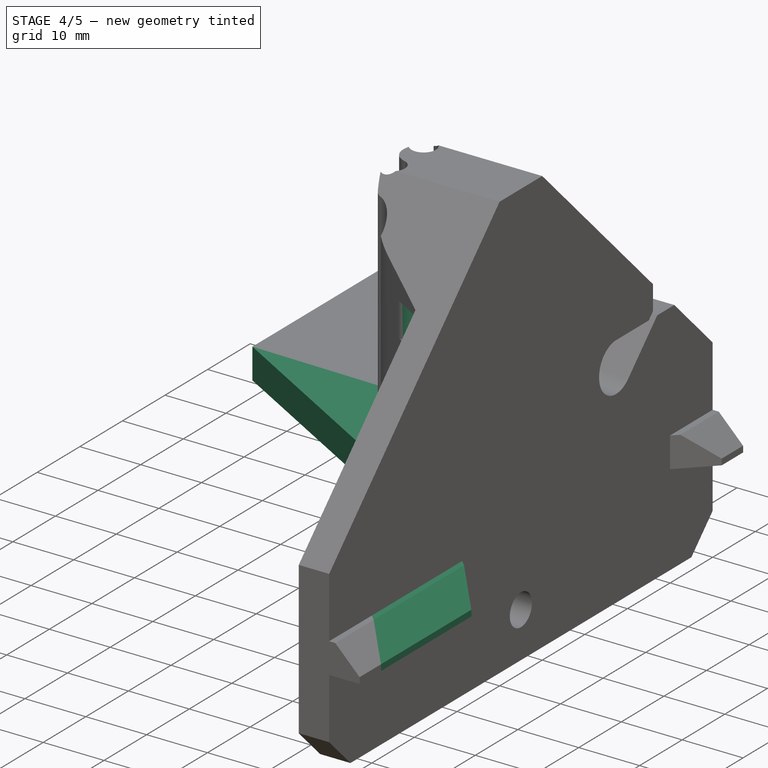
[diagram: stage 4 of 5 — iso view after this stage's code; geometry added in this stage tinted green]
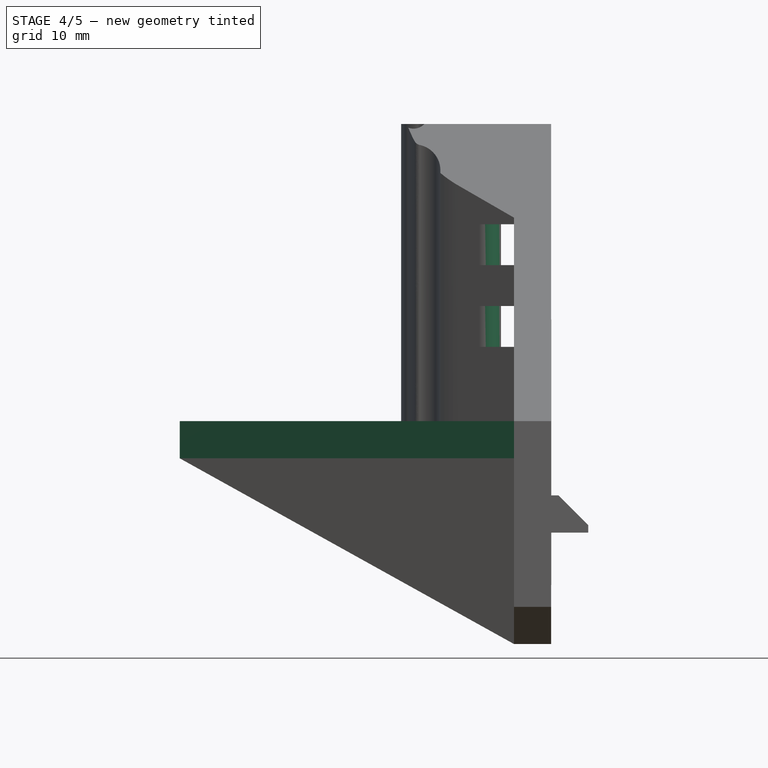
[diagram: stage 4 of 5 — front view after this stage's code; geometry added in this stage tinted green]
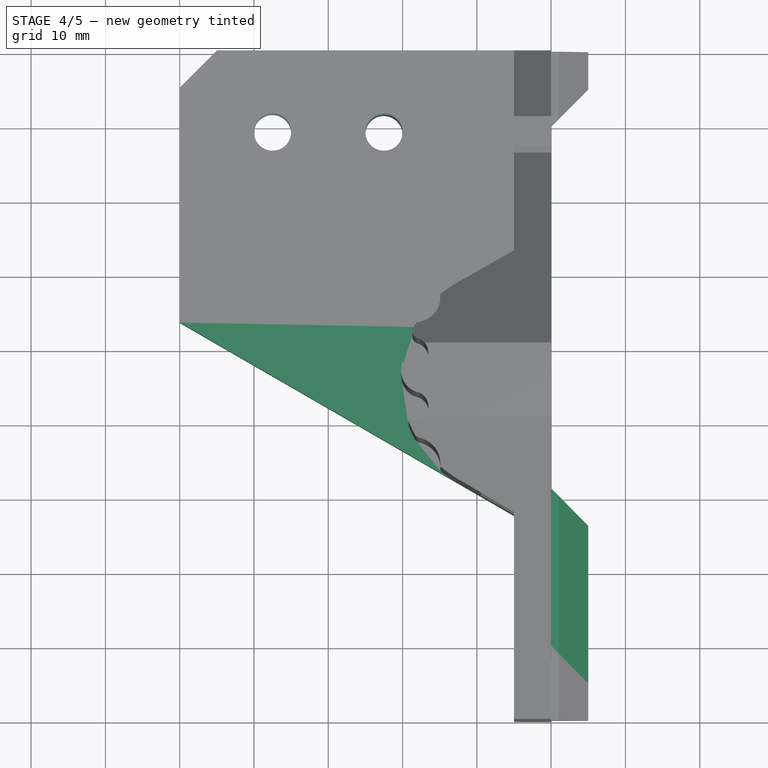
[diagram: stage 4 of 5 — top view after this stage's code; geometry added in this stage tinted green]
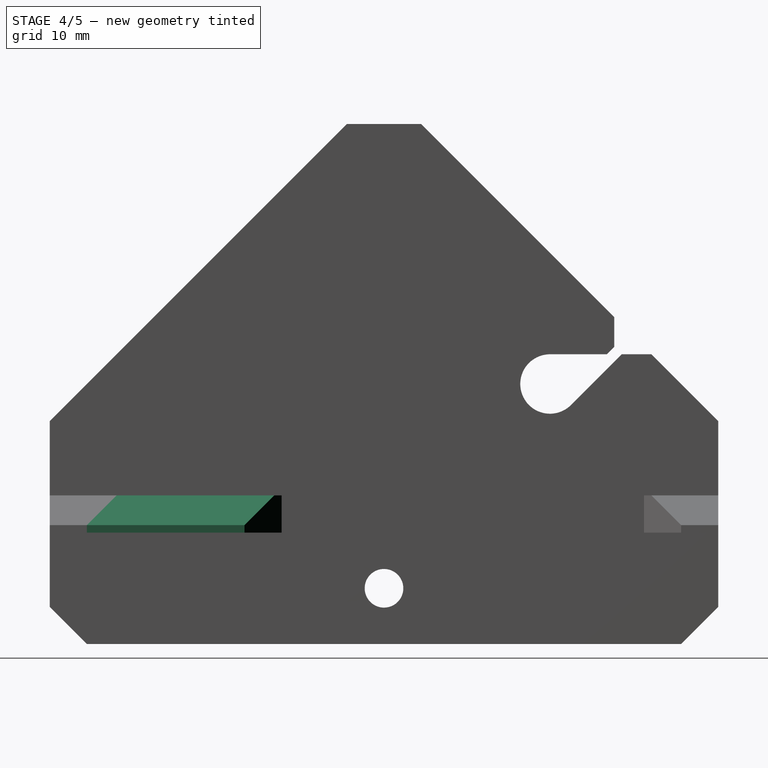
[diagram: stage 4 of 5 — right view after this stage's code; geometry added in this stage tinted green]
FEATURE [PartDesign::Fillet] Fillet004
  Base = -> Pocket008 [Edge109,Edge106,Edge85,Edge88]
  BaseFeature = -> Pocket008
  Placement = pos=(0,0,0) rot=(1,0,0;1.5708rad)
  Radius = 2
  Refine = true
  SupportTransform = false
  UseAllEdges = false
FEATURE [PartDesign::Pocket] Pocket009
  BaseFeature = -> Fillet004
  Direction = (0,0,-1)
  Length = 5
  Length2 = 5
  Placement = pos=(0,0,0) rot=(1,0,0;1.5708rad)
  Profile = -> Sketch008
  ReferenceAxis = -> Sketch008 [N_Axis]
  Type = 1
FEATURE [Sketcher::SketchObject] Sketch014
  ExternalGeometry = -> [Pocket009]
  FullyConstrained = false
  MapMode = 5
  Placement = pos=(0,0,10) rot=(1,0,0;3.14159rad)
  Support = -> [Pocket009]
  sketch-geometry (4):
    g0: LineSegment StartX=-5 StartY=35 StartZ=0 EndX=-78.6862 EndY=2.24331 EndZ=0
    g1: LineSegment StartX=-78.6862 StartY=2.24331 StartZ=0 EndX=-78.6862 EndY=148.491 EndZ=0
    g2: LineSegment StartX=-78.6862 StartY=148.491 StartZ=0 EndX=-5 EndY=148.491 EndZ=0
    g3: LineSegment StartX=-5 StartY=148.491 StartZ=0 EndX=-5 EndY=35 EndZ=0
  constraints (9):
    c: Coincident(g0,g1)
    c: Coincident(g1,g2)
    c: Coincident(g2,g3)
    c: Coincident(g3,g0)
    c: Horizontal(g2)
    c: Vertical(g1)
    c: Vertical(g3)
    c: PointOnObject(g0,g-3)
    c: Tangent(g0,g-4)
FEATURE [PartDesign::Pocket] Pocket010
  BaseFeature = -> Pocket009
  Direction = (0,0,1)
  Length = 5
  Length2 = 5
  Placement = pos=(0,0,0) rot=(1,0,0;1.5708rad)
  Profile = -> Sketch014
  ReferenceAxis = -> Sketch014 [N_Axis]
  Reversed = true
  Type = 1
FEATURE [PartDesign::Pocket] Pocket011
  BaseFeature = -> Pocket010
  Direction = (0,-9e-16,-1)
  Length = 5
  Length2 = 5
  Placement = pos=(0,0,0) rot=(1,0,0;1.5708rad)
  Profile = -> Pocket010 [Face33,Face31,Face32,Face34]
  ReferenceAxis = -> Pocket010 [Edge178]
  Type = 0
FEATURE [PartDesign::Pocket] Pocket012
  BaseFeature = -> Pocket011
  Direction = (0,2e-16,1)
  Length = 5
  Length2 = 5
  Placement = pos=(0,0,0) rot=(1,0,0;1.5708rad)
  Profile = -> Pocket011 [Face71,Face59]
  Type = 0
FEATURE [PartDesign::Pad] Pad004
  BaseFeature = -> Pocket012
  Direction = (0,-1,3e-16)
  Length = 27
  Length2 = 10
  Placement = pos=(0,0,0) rot=(1,0,0;1.5708rad)
  Profile = -> Pocket012 [Face34]
  ReferenceAxis = -> Pocket012 [Edge176]
  Type = 3
  UpToFace = -> Pocket012 [Face15]
FEATURE [PartDesign::Pad] Pad005
  BaseFeature = -> Pad004
  Direction = (0,-1,4e-16)
  Length = 15
  Length2 = 10
  Placement = pos=(0,0,0) rot=(1,0,0;1.5708rad)
  Profile = -> Pad004 [Face77]
  ReferenceAxis = -> Pad004 [Edge135]
  Reversed = true
  Type = 0
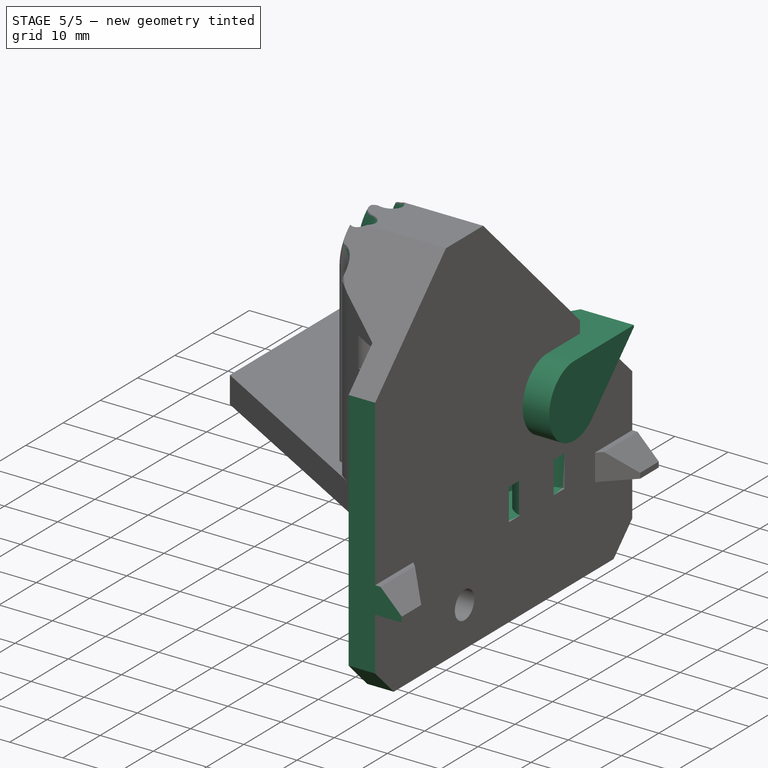
[diagram: stage 5 of 5 — iso view after this stage's code; geometry added in this stage tinted green]
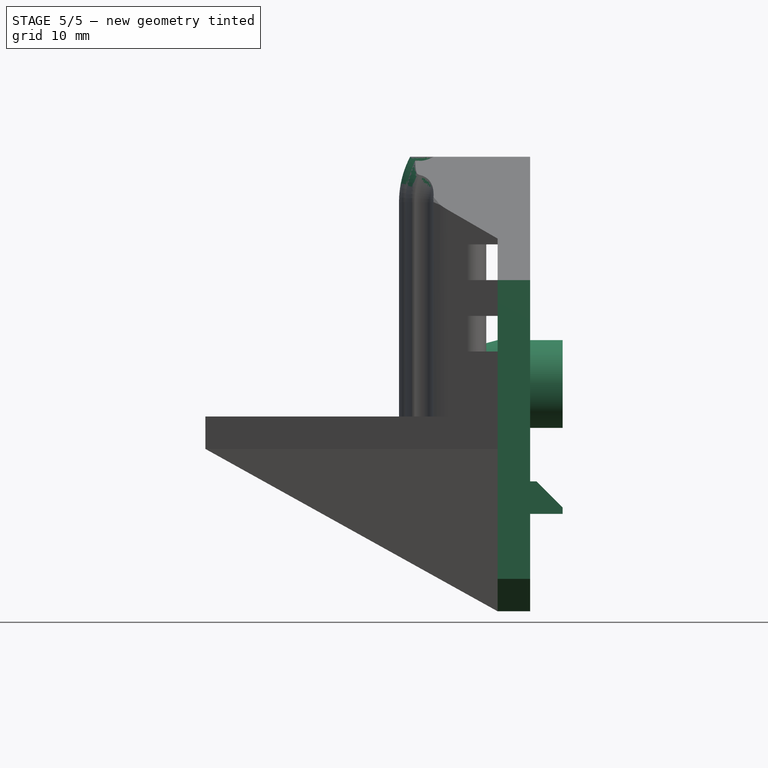
[diagram: stage 5 of 5 — front view after this stage's code; geometry added in this stage tinted green]
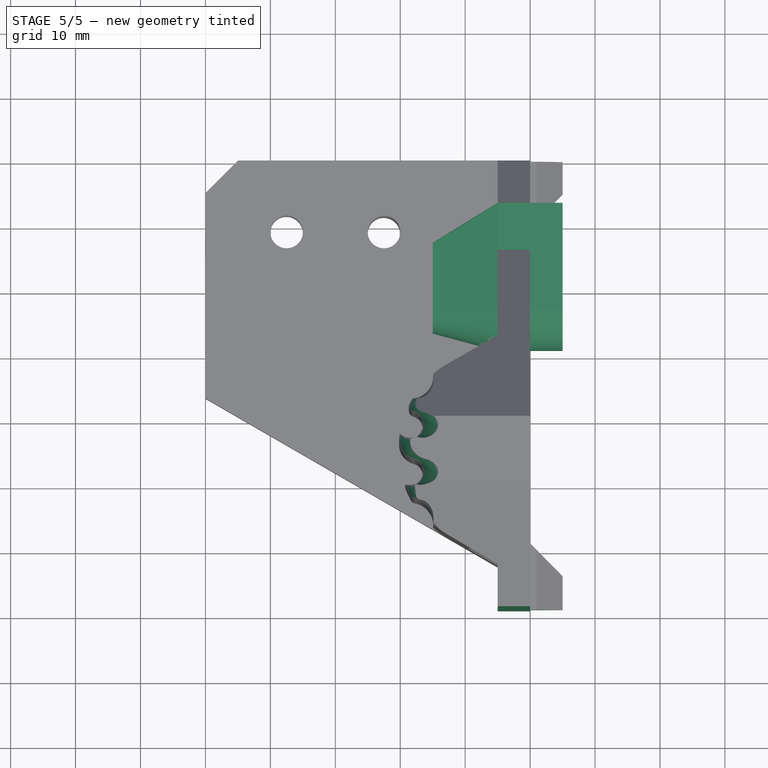
[diagram: stage 5 of 5 — top view after this stage's code; geometry added in this stage tinted green]
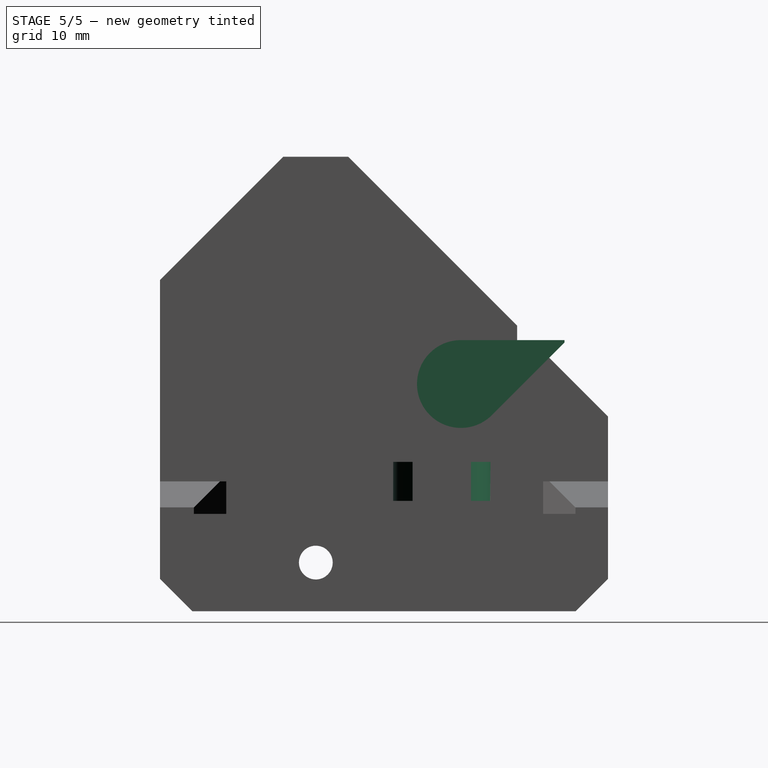
[diagram: stage 5 of 5 — right view after this stage's code; geometry added in this stage tinted green]
FEATURE [PartDesign::Pocket] Pocket013
  BaseFeature = -> Pad005
  Direction = (-1e-16,1,-1.3e-15)
  Length = 21
  Length2 = 5
  Placement = pos=(0,0,0) rot=(1,0,0;1.5708rad)
  Profile = -> Pad005 [Face49,Face52]
  Type = 0
FEATURE [PartDesign::Pocket] Pocket014
  BaseFeature = -> Pocket013
  Direction = (-3e-16,1.4e-15,1)
  Length = 5
  Length2 = 5
  Placement = pos=(0,0,0) rot=(1,0,0;1.5708rad)
  Profile = -> Pocket013 [Face18]
  Refine = true
  Type = 1
FEATURE [Sketcher::SketchObject] Sketch015
  ExternalGeometry = -> [Pocket014]
  FullyConstrained = false
  MapMode = 5
  Placement = pos=(-5,4e-16,-2e-16) rot=(0.707107,0,-0.707107;3.14159rad)
  Support = -> [Pocket014]
  sketch-geometry (6):
    g0: ArcOfCircle CenterX=-20 CenterY=22.6569 CenterZ=0 NormalX=0 NormalY=0 NormalZ=1 AngleXU=0 Radius=6.762 StartAngle=5.49779 EndAngle=9.42478
    g1: LineSegment StartX=-26.762 StartY=22.6569 StartZ=0 EndX=-26.762 EndY=6.70373 EndZ=0
    g2: LineSegment StartX=-15.2185 StartY=17.8754 StartZ=0 EndX=-26.3902 EndY=6.70373 EndZ=0
    g3: LineSegment StartX=-26.762 StartY=6.70373 StartZ=0 EndX=-26.3902 EndY=6.70373 EndZ=0
    g4: LineSegment StartX=-15.2185 StartY=17.8754 StartZ=0 EndX=-20 EndY=22.6569 EndZ=0
    g5: LineSegment StartX=-20 StartY=22.6569 StartZ=0 EndX=-26.762 EndY=22.6569 EndZ=0
  constraints (13):
    c: Coincident(g0,g-3)
    c: Tangent(g1,g0) = -1.5708
    c: Tangent(g2,g0) = 1.5708
    c: Coincident(g3,g1)
    c: Diameter(g0) = 13.524
    c: Coincident(g4,g0)
    c: Coincident(g4,g0)
    c: Coincident(g5,g0)
    c: Coincident(g5,g0)
    c: Angle(g-1,g2) = 0.785398
    c: Vertical(g1)
    c: Coincident(g2,g3)
    c: Horizontal(g3)
FEATURE [Sketcher::SketchObject] Sketch016
  ExternalGeometry = -> [Pocket014]
  FullyConstrained = false
  MapMode = 5
  Placement = pos=(-5,0,0) rot=(0.707107,0,-0.707107;3.14159rad)
  sketch-geometry (6):
    g0: ArcOfCircle CenterX=-20 CenterY=22.6569 CenterZ=0 NormalX=0 NormalY=0 NormalZ=1 AngleXU=0 Radius=6.762 StartAngle=5.49779 EndAngle=9.42478
    g1: LineSegment StartX=-26.762 StartY=22.6569 StartZ=0 EndX=-26.762 EndY=6.70373 EndZ=0
    g2: LineSegment StartX=-15.2185 StartY=17.8754 StartZ=0 EndX=-26.3902 EndY=6.70373 EndZ=0
    g3: LineSegment StartX=-26.762 StartY=6.70373 StartZ=0 EndX=-26.3902 EndY=6.70373 EndZ=0
    g4: LineSegment StartX=-15.2185 StartY=17.8754 StartZ=0 EndX=-20 EndY=22.6569 EndZ=0
    g5: LineSegment StartX=-20 StartY=22.6569 StartZ=0 EndX=-26.762 EndY=22.6569 EndZ=0
  constraints (13):
    c: Coincident(g0,g-3)
    c: Tangent(g1,g0) = -1.5708
    c: Tangent(g2,g0) = 1.5708
    c: Coincident(g3,g1)
    c: Diameter(g0) = 13.524
    c: Coincident(g4,g0)
    c: Coincident(g4,g0)
    c: Coincident(g5,g0)
    c: Coincident(g5,g0)
    c: Angle(g-1,g2) = 0.785398
    c: Vertical(g1)
    c: Coincident(g2,g3)
    c: Horizontal(g3)
FEATURE [PartDesign::Pad] Pad006
  Direction = (-1,1e-16,-2e-16)
  Length = 10
  Length2 = 10
  Placement = pos=(-5,0,0) rot=(0.707107,0,-0.707107;3.14159rad)
  Profile = -> Sketch016
  ReferenceAxis = -> Sketch016 [N_Axis]
  TaperAngle = -15
  Type = 0
FEATURE [PartDesign::Pad] Pad007
  BaseFeature = -> Pad006
  Direction = (-1,1e-16,-2e-16)
  Length = 10
  Length2 = 10
  Placement = pos=(-5,0,0) rot=(0.707107,0,-0.707107;3.14159rad)
  Profile = -> Sketch016
  ReferenceAxis = -> Sketch016 [N_Axis]
  Reversed = true
  Type = 0
FEATURE [PartDesign::Body] Body001  label="Main Body"
  Group = -> [Sketch016,Pad006,Pad007]
  Origin = -> Origin001
  Tip = -> Pad007
FEATURE [Sketcher::SketchObject] Sketch017
  FullyConstrained = false
  MapMode = 5
  Placement = pos=(0,0,0) rot=(0.57735,0.57735,0.57735;2.0944rad)
  Support = -> [YZ_Plane]
  sketch-geometry (5):
    g0: LineSegment StartX=-33.096 StartY=2 StartZ=0 EndX=-30.096 EndY=2 EndZ=0
    g1: LineSegment StartX=-30.096 StartY=2 StartZ=0 EndX=-30.096 EndY=8 EndZ=0
    g2: LineSegment StartX=-30.096 StartY=8 StartZ=0 EndX=-33.096 EndY=8 EndZ=0
    g3: LineSegment StartX=-33.096 StartY=8 StartZ=0 EndX=-33.096 EndY=2 EndZ=0
    g4: LineSegment StartX=-25.596 StartY=-16.0529 StartZ=0 EndX=-25.596 EndY=15.1437 EndZ=0
  constraints (14):
    c: Coincident(g0,g1)
    c: Coincident(g1,g2)
    c: Coincident(g2,g3)
    c: Coincident(g3,g0)
    c: Horizontal(g0)
    c: Horizontal(g2)
    c: Vertical(g1)
    c: Vertical(g3)
    c: DistanceY(g1,g1) = 6
    c: DistanceX(g2,g2) = 3
    c: DistanceY(g-1,g0) = 2
    c: DistanceX(g4,g-1) = 25.596
    c: Vertical(g4)
    c: Distance(g0,g4) = 4.5
FEATURE [PartDesign::Line] DatumLine
  AttacherType = Attacher::AttachEngineLine
  AttachmentOffset = pos=(0,0,6) rot=(1,0,0;1.5708rad)
  Length = 20
  MapMode = 42
  Placement = pos=(1,-25.5964,18.7824) rot=(0.707107,0.707107,0;3.14159rad)
  ResizeMode = 0
  Support = -> [Pad007]
FEATURE [PartDesign::Groove] Groove
  Angle = 360
  Axis = (2e-16,0,-1)
  Base = (1,-25.5964,18.7824)
  BaseFeature = -> Pocket014
  Placement = pos=(0,0,0) rot=(1,0,0;1.5708rad)
  Profile = -> Sketch017
  ReferenceAxis = -> DatumLine
  Reversed = true
FEATURE [PartDesign::SubShapeBinder] Binder
  BindCopyOnChange = 0
  BindMode = 0
  ClaimChildren = false
  Context = -> Body [Binder.]
  Fuse = false
  MakeFace = true
  OffsetFill = false
  OffsetIntersection = false
  OffsetJoinType = 0
  OffsetOpenResult = false
  PartialLoad = false
  Placement = pos=(0,0,33) rot=(0,0,1;0rad)
  Relative = true
  _Version = 2
FEATURE [Sketcher::SketchObject] Sketch018
  AttachmentOffset = pos=(61,0,45) rot=(0,0,1;0rad)
  ExternalGeometry = -> [Binder]
  FullyConstrained = false
  MapMode = 5
  Placement = pos=(61,-45,-1e-14) rot=(1,0,0;1.5708rad)
  Support = -> [XZ_Plane]
  sketch-geometry (1):
    g0: ArcOfCircle CenterX=-66.0436 CenterY=48 CenterZ=0 NormalX=0 NormalY=0 NormalZ=1 AngleXU=0 Radius=9.45147 StartAngle=1.90352 EndAngle=3.14159
  constraints (2):
    c: Perpendicular(g0,g-3)
    c: PointOnObject(g0,g-3)
FEATURE [Sketcher::SketchObject] Sketch020
  ExternalGeometry = -> [Binder]
  FullyConstrained = true
  MapMode = 5
  Placement = pos=(-3e-16,1.08e-14,48) rot=(0,0,1;0rad)
  Support = -> [Binder]
  sketch-geometry (16):
    g0: LineSegment StartX=-5 StartY=-27.3908 StartZ=0 EndX=-12.625 EndY=-31.7931 EndZ=0
    g1: ArcOfCircle CenterX=-18.4058 CenterY=-33.7512 CenterZ=0 NormalX=0 NormalY=0 NormalZ=1 AngleXU=0 Radius=3.5 StartAngle=4.7918 EndAngle=6.37831
    g2: ArcOfCircle CenterX=-5 CenterY=-45 CenterZ=0 NormalX=0 NormalY=0 NormalZ=1 AngleXU=0 Radius=15.25 StartAngle=2.0944 EndAngle=2.27917
    g3: ArcOfCircle CenterX=-17.1915 CenterY=-43.804 CenterZ=0 NormalX=0 NormalY=0 NormalZ=1 AngleXU=0 Radius=3 StartAngle=3.04381 EndAngle=4.44284
    g4: ArcOfCircle CenterX=-18.523 CenterY=-48.6235 CenterZ=0 NormalX=0 NormalY=0 NormalZ=1 AngleXU=0 Radius=2 StartAngle=4.35365 EndAngle=7.58443
    g5: ArcOfCircle CenterX=-18.4058 CenterY=-56.2488 CenterZ=0 NormalX=0 NormalY=0 NormalZ=1 AngleXU=0 Radius=3.5 StartAngle=6.18806 EndAngle=7.65146
    g6: ArcOfCircle CenterX=-18.523 CenterY=-41.3765 CenterZ=0 NormalX=0 NormalY=0 NormalZ=1 AngleXU=0 Radius=2 StartAngle=3.83005 EndAngle=7.56911
    g7: ArcOfCircle CenterX=-5 CenterY=-45 CenterZ=0 NormalX=0 NormalY=0 NormalZ=1 AngleXU=0 Radius=15.25 StartAngle=2.98669 EndAngle=3.04381
    g8: ArcOfCircle CenterX=-17.6799 CenterY=-38.4974 CenterZ=0 NormalX=0 NormalY=0 NormalZ=1 AngleXU=0 Radius=1 StartAngle=2.66774 EndAngle=4.42752
    g9: ArcOfCircle CenterX=-5 CenterY=-45 CenterZ=0 NormalX=0 NormalY=0 NormalZ=1 AngleXU=0 Radius=15.25 StartAngle=2.60776 EndAngle=2.66774
    g10: ArcOfCircle CenterX=-5 CenterY=-45 CenterZ=0 NormalX=0 NormalY=0 NormalZ=1 AngleXU=0 Radius=15.25 StartAngle=3.51029 EndAngle=3.64231
    g11: ArcOfCircle CenterX=-17.5007 CenterY=-51.8407 CenterZ=0 NormalX=0 NormalY=0 NormalZ=1 AngleXU=0 Radius=1 StartAngle=3.64231 EndAngle=4.50987
    g12: ArcOfCircle CenterX=-5 CenterY=-45 CenterZ=0 NormalX=0 NormalY=0 NormalZ=1 AngleXU=0 Radius=15.25 StartAngle=4.00402 EndAngle=4.18879
    g13: LineSegment StartX=-49.99 StartY=-36.6342 StartZ=0 EndX=-12.625 EndY=-58.2069 EndZ=0
    g14: LineSegment StartX=-49.99 StartY=-36.6342 StartZ=0 EndX=-49.99 EndY=-27.3908 EndZ=0
    g15: LineSegment StartX=-5 StartY=-27.3908 StartZ=0 EndX=-49.99 EndY=-27.3908 EndZ=0
  constraints (41):
    c: Coincident(g0,g-4)
    c: Coincident(g0,g-4)
    c: Tangent(g1,g-5) = -1.5708
    c: Coincident(g1,g-6)
    c: Coincident(g2,g1)
    c: Coincident(g2,g0)
    c: Tangent(g3,g-11) = 1.5708
    c: Coincident(g-10,g3)
    c: Coincident(g4,g3)
    c: Coincident(g4,g-12)
    c: Tangent(g5,g-14) = -1.5708
    c: Coincident(g5,g-15)
    c: Coincident(g6,g-10)
    c: Equal(g6,g-8)
    c: Coincident(g7,g6)
    c: Coincident(g7,g3)
    c: Tangent(g7,g-10)
    c: Coincident(g8,g-7)
    c: Coincident(g8,g6)
    c: Coincident(g6,g-8)
    c: Diameter(g8) = 2
    c: Coincident(g9,g8)
    c: Coincident(g9,g1)
    c: Coincident(g4,g-11)
    c: Coincident(g9,g2)
    c: Coincident(g10,g4)
    c: Coincident(g10,g-13)
    c: Tangent(g10,g-12)
    c: Coincident(g11,g10)
    c: Coincident(g11,g5)
    c: Diameter(g11) = 2
    c: Coincident(g12,g5)
    c: Coincident(g12,g-16)
    c: Tangent(g12,g-15)
    c: Coincident(g13,g-16)
    c: Coincident(g13,g12)
    c: Coincident(g14,g13)
    c: Coincident(g15,g0)
    c: Coincident(g15,g14)
    c: Horizontal(g15)
    c: Vertical(g14)
FEATURE [PartDesign::SubtractivePipe] SubtractivePipe
  AuxilleryCurvelinear = true
  AuxillerySpineTangent = false
  BaseFeature = -> Groove
  Binormal = (0,0,0)
  Mode = 0
  Placement = pos=(0,0,0) rot=(1,0,0;1.5708rad)
  Profile = -> Sketch020
  Spine = -> Sketch018 [Edge1]
  SpineTangent = false
  Transformation = 0
  Transition = 0
FEATURE [PartDesign::Body] Body  label="Negative Object"
  Group = -> [Sketch,Pad,Sketch001,Pocket,Sketch002,Pocket001,Sketch004,Pocket002,DatumPlane,Sketch005,Pad001,DatumPlane001,Sketch007,Pocket004,Sketch008,Pocket005,Sketch009,Pocket006,Fillet,Fillet001,Fillet002,DatumPlane002,Sketch010,Pocket007,Sketch011,Pad002,DatumPlane003,Sketch012,Pad003,Chamfer,Chamfer001,Chamfer002,Chamfer003,Chamfer004,Fillet003,Sketch013,Pocket008,Fillet004,Pocket009,Sketch014,+15 more]
  Origin = -> Origin
  Tip = -> SubtractivePipe
FEATURE [Part::Compound] Compound  label="Body"
  Links = -> [Body001,Body]
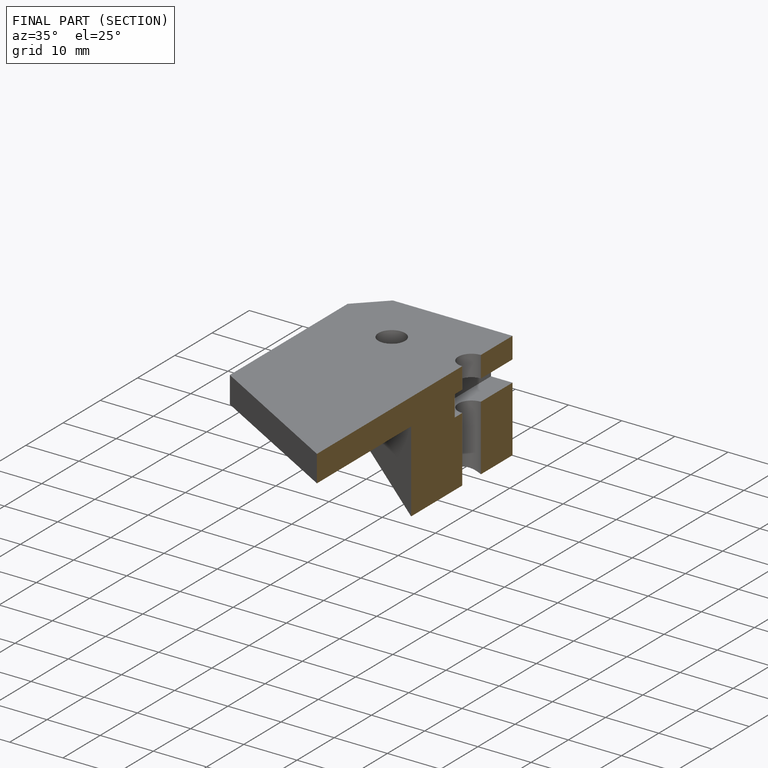
[diagram: finished part — half-section view (interior)]
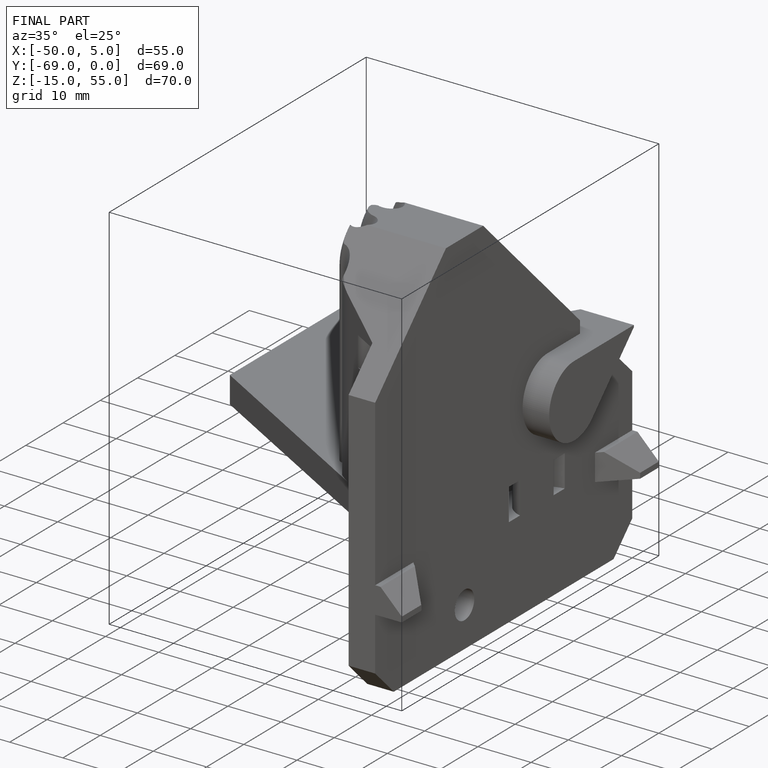
[diagram: finished part — iso view with bounding-box wireframe]
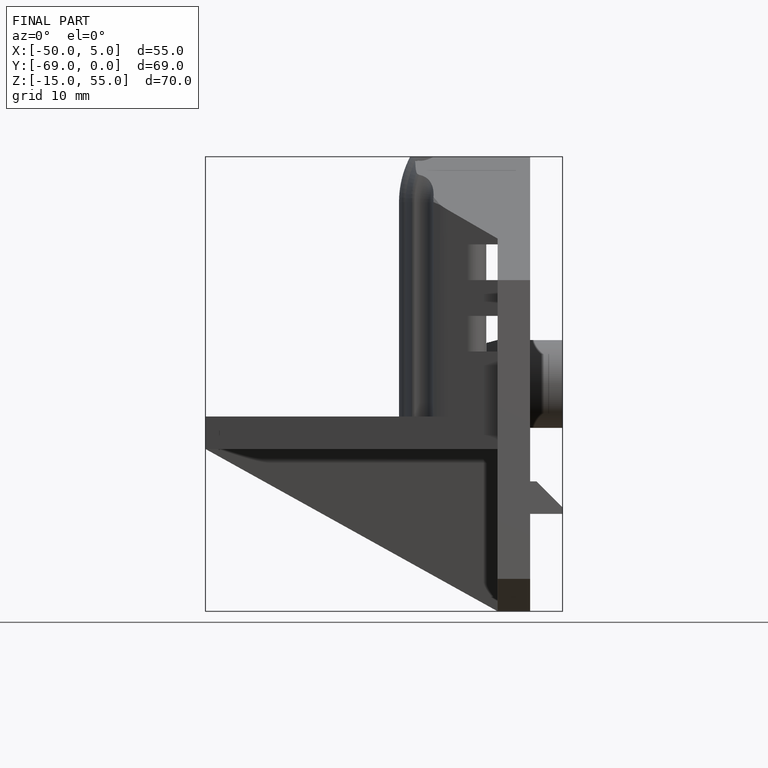
[diagram: finished part — front view with bounding-box wireframe]
